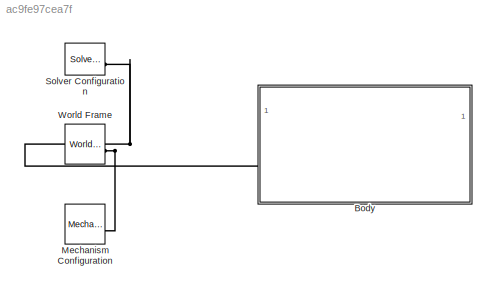
MODEL slx_ac9fe97cea7f
KIND model
CONFIG AbsTol = 1e-3
CONFIG EnableMultiTasking = on
CONFIG FixedStep = auto
CONFIG MaxStep = auto
CONFIG MinStep = auto
CONFIG RelTol = 1e-3
CONFIG SampleTimeConstraint = Unconstrained
CONFIG SolverName = VariableStepAuto
CONFIG StartTime = 0.0
CONFIG StopTime = 10.0
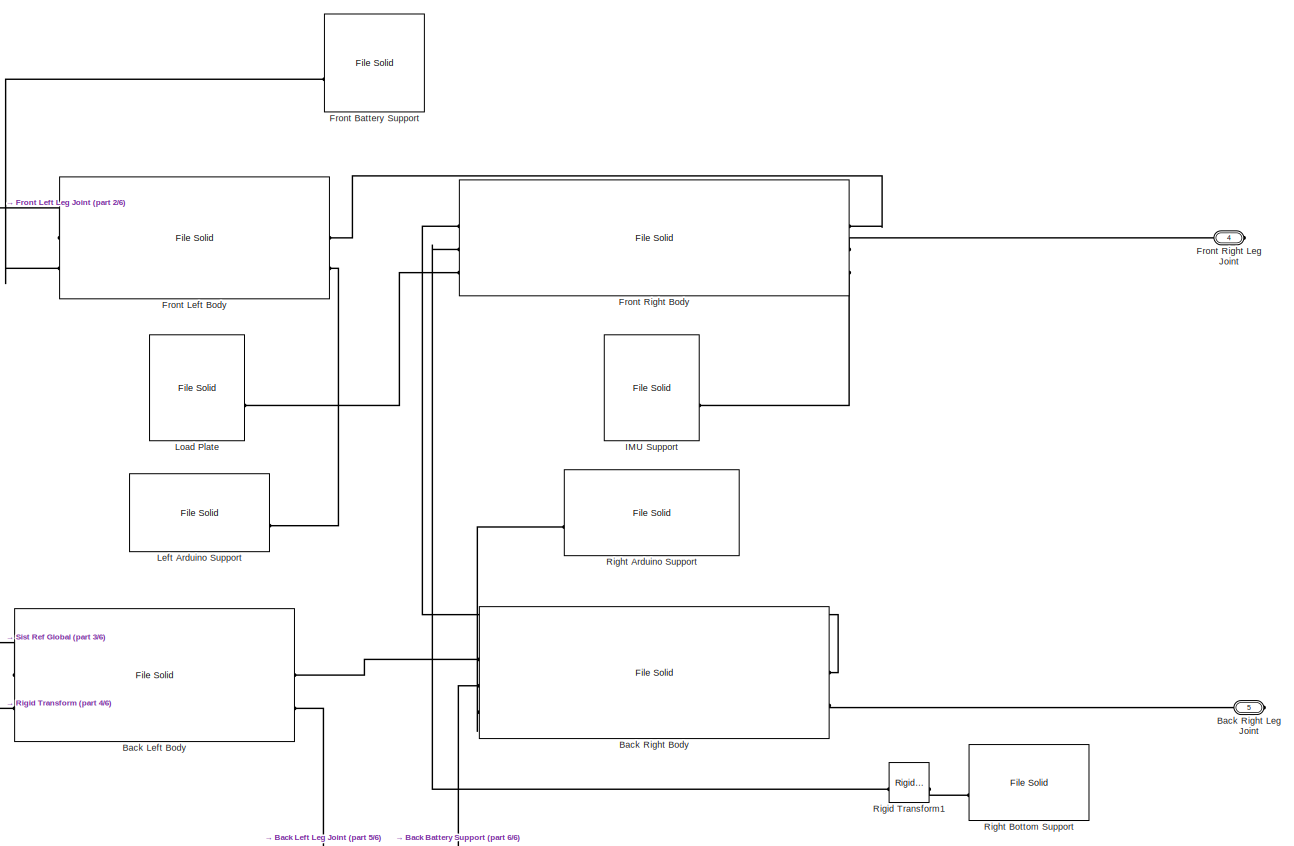
[diagram: Body - part 1/6, center side, full height]
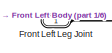
[diagram: Body - part 2/6, top left region]
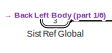
[diagram: Body - part 3/6, middle left region]
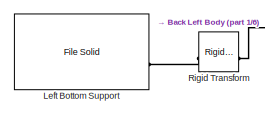
[diagram: Body - part 4/6, bottom left region]
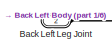
[diagram: Body - part 5/6, bottom left region]
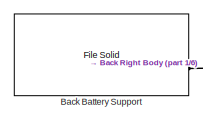
[diagram: Body - part 6/6, bottom center region]
BLOCK [SubSystem] Body
  PortSchema = {"entries":[{"content":{"sides":[{"content":{"connectorIds":["LConn1","LConn2"]},"type":"ConnectorPlacement.EquallySpacedRectSide","uuid":"7e571d79-ae97-4142-b841-f21338aaaca3"},{"content":{"connectorIds":["RConn1","RConn2"],"side":"RIGHT"},"type":"ConnectorPlacement.EquallySpacedRectSide","uuid":"6f97dc1d-ab4d-418b-a488-8d905cc2dabb"},{"content":{"connectorIds":["LConn3"],"side":"TOP"},"type":"Co...<+271ch>
BLOCK [Reference] Body/Back Battery Support  REF=sm_lib/Body Elements/File Solid
  SourceBlock = sm_lib/Body Elements/File Solid
  SourceType = File Solid
BLOCK [Reference] Body/Back Left Body  REF=sm_lib/Body Elements/File Solid
  SourceBlock = sm_lib/Body Elements/File Solid
  SourceType = File Solid
BLOCK [PMIOPort] Body/Back Left Leg Joint
  Port = 2
  Side = Left
BLOCK [Reference] Body/Back Right Body  REF=sm_lib/Body Elements/File Solid
  SourceBlock = sm_lib/Body Elements/File Solid
  SourceType = File Solid
BLOCK [PMIOPort] Body/Back Right Leg Joint
  Port = 5
  Side = Right
BLOCK [Reference] Body/Front Battery Support  REF=sm_lib/Body Elements/File Solid
  SourceBlock = sm_lib/Body Elements/File Solid
  SourceType = File Solid
BLOCK [Reference] Body/Front Left Body  REF=sm_lib/Body Elements/File Solid
  SourceBlock = sm_lib/Body Elements/File Solid
  SourceType = File Solid
BLOCK [PMIOPort] Body/Front Left Leg Joint
  Side = Left
BLOCK [Reference] Body/Front Right Body  REF=sm_lib/Body Elements/File Solid
  SourceBlock = sm_lib/Body Elements/File Solid
  SourceType = File Solid
BLOCK [PMIOPort] Body/Front Right Leg Joint
  Port = 4
  Side = Right
BLOCK [Reference] Body/IMU Support  REF=sm_lib/Body Elements/File Solid
  SourceBlock = sm_lib/Body Elements/File Solid
  SourceType = File Solid
BLOCK [Reference] Body/Left Arduino Support  REF=sm_lib/Body Elements/File Solid
  SourceBlock = sm_lib/Body Elements/File Solid
  SourceType = File Solid
BLOCK [Reference] Body/Left Bottom Support  REF=sm_lib/Body Elements/File Solid
  SourceBlock = sm_lib/Body Elements/File Solid
  SourceType = File Solid
BLOCK [Reference] Body/Load Plate  REF=sm_lib/Body Elements/File Solid
  SourceBlock = sm_lib/Body Elements/File Solid
  SourceType = File Solid
BLOCK [Reference] Body/Right Arduino Support  REF=sm_lib/Body Elements/File Solid
  SourceBlock = sm_lib/Body Elements/File Solid
  SourceType = File Solid
BLOCK [Reference] Body/Right Bottom Support  REF=sm_lib/Body Elements/File Solid
  SourceBlock = sm_lib/Body Elements/File Solid
  SourceType = File Solid
BLOCK [Reference] Body/Rigid Transform  REF=sm_lib/Frames and
Transforms/Rigid
Transform
  SourceBlock = sm_lib/Frames and\nTransforms/Rigid\nTransform
  SourceType = Rigid\nTransform
BLOCK [Reference] Body/Rigid Transform1  REF=sm_lib/Frames and
Transforms/Rigid
Transform
  SourceBlock = sm_lib/Frames and\nTransforms/Rigid\nTransform
  SourceType = Rigid\nTransform
BLOCK [PMIOPort] Body/Sist Ref Global
  Port = 3
  Side = Left
BLOCK [Reference] Mechanism Configuration  REF=sm_lib/Utilities/Mechanism
Configuration
  SourceBlock = sm_lib/Utilities/Mechanism\nConfiguration
  SourceType = Mechanism\nConfiguration
BLOCK [Reference] Solver Configuration  REF=nesl_utility/Solver
Configuration
  SourceBlock = nesl_utility/Solver\nConfiguration
  SourceType = Solver\nConfiguration
BLOCK [Reference] World Frame  REF=sm_lib/Frames and
Transforms/World Frame
  SourceBlock = sm_lib/Frames and\nTransforms/World Frame
  SourceType = World Frame
PLINE Body/Back Battery Support:LConn1 -- Body/Back Right Body:LConn2
PLINE Body/Back Left Body:LConn1 -- Body/Back Right Body:LConn1
PLINE Body/Back Left Body:LConn2 -- Body/Back Left Leg Joint:RConn1
PLINE Body/Back Left Body:RConn1 -- Body/Sist Ref Global:RConn1
PLINE Body/Back Left Body:RConn2 -- Body/Rigid Transform:RConn1
PLINE Body/Back Right Body:LConn3 -- Body/Right Arduino Support:LConn1
PLINE Body/Back Right Body:RConn1 -- Body/Front Right Body:RConn1
PLINE Body/Back Right Body:RConn2 -- Body/Back Right Leg Joint:RConn1
PLINE Body/Front Battery Support:LConn1 -- Body/Front Left Body:RConn2
PLINE Body/Front Left Body:LConn1 -- Body/Front Right Body:LConn1
PLINE Body/Front Left Body:LConn2 -- Body/Left Arduino Support:LConn1
PLINE Body/Front Left Body:RConn1 -- Body/Front Left Leg Joint:RConn1
PLINE Body/Front Right Body:LConn2 -- Body/Front Right Leg Joint:RConn1
PLINE Body/Front Right Body:LConn3 -- Body/IMU Support:LConn1
PLINE Body/Front Right Body:RConn2 -- Body/Rigid Transform1:RConn1
PLINE Body/Front Right Body:RConn3 -- Body/Load Plate:LConn1
PLINE Body/Left Bottom Support:LConn1 -- Body/Rigid Transform:LConn1
PLINE Body/Right Bottom Support:LConn1 -- Body/Rigid Transform1:LConn1
PNET net1: Body:LConn3 -- Mechanism Configuration:RConn1 -- Solver Configuration:RConn1 -- World Frame:RConn1
note: PNET lines group multi-terminal physical nets as a canonical sorted terminal list (undirected conserving connections); 2-terminal nets keep the pairwise PLINE form
